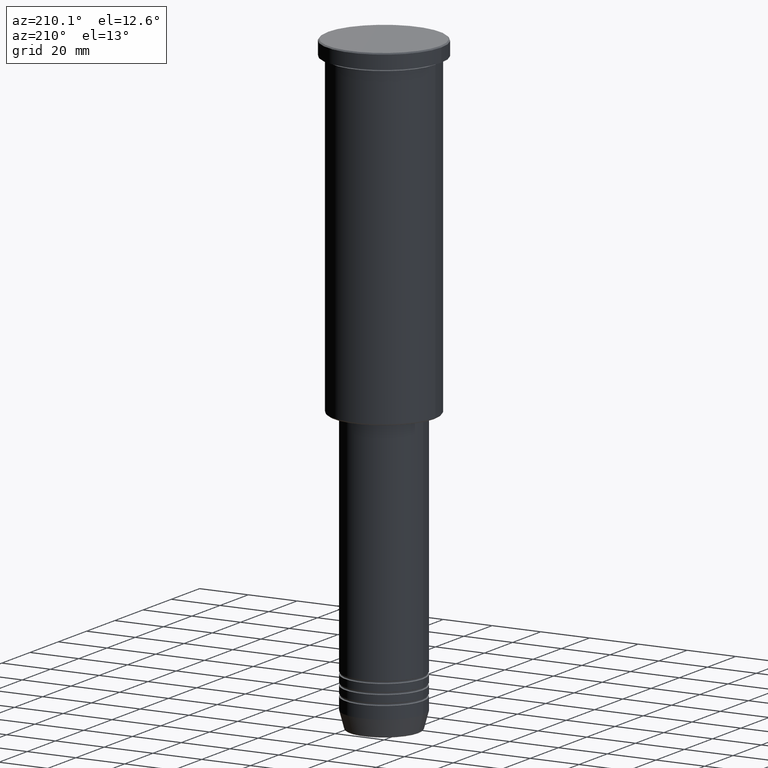
[diagram: clean part render]
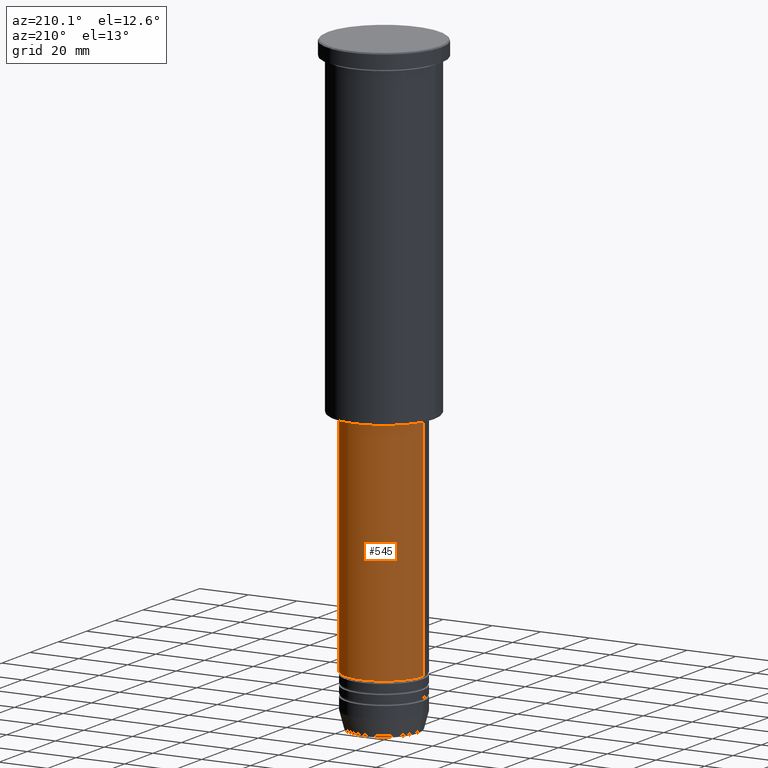
[diagram: same view with one face highlighted and labeled with its STEP entity id]
A machine part, auxiliary view. The second image highlights one B-rep face of the part: STEP entity #545.
In plain terms, the highlighted cylindrical surface (partial cylindrical patch) has radius 16 mm, axis along (-0, -0, 1).
Its self-contained STEP definition (entity closure, byte-faithful):
#15 = AXIS2_PLACEMENT_3D ( 'NONE', #1142, #138, #877 ) ;
#54 = AXIS2_PLACEMENT_3D ( 'NONE', #184, #395, #563 ) ;
#58 = CARTESIAN_POINT ( 'NONE',  ( 16.00000000000000355, 0.000000000000000000, -137.0000000000000000 ) ) ;
#80 = CARTESIAN_POINT ( 'NONE',  ( 16.00000000000000000, 0.000000000000000000, 0.000000000000000000 ) ) ;
#95 = CARTESIAN_POINT ( 'NONE',  ( 0.000000000000000000, 0.000000000000000000, -229.9999999999998863 ) ) ;
#118 = FACE_OUTER_BOUND ( 'NONE', #405, .T. ) ;
#138 = DIRECTION ( 'NONE',  ( -0.000000000000000000, -0.000000000000000000, 1.000000000000000000 ) ) ;
#184 = CARTESIAN_POINT ( 'NONE',  ( 0.000000000000000000, 0.000000000000000000, 0.000000000000000000 ) ) ;
#204 = DIRECTION ( 'NONE',  ( -0.000000000000000000, -0.000000000000000000, 1.000000000000000000 ) ) ;
#209 = CYLINDRICAL_SURFACE ( 'NONE', #54, 16.00000000000000000 ) ;
#255 = CIRCLE ( 'NONE', #930, 16.00000000000000000 ) ;
#270 = VECTOR ( 'NONE', #1166, 1000.000000000000000 ) ;
#292 = VERTEX_POINT ( 'NONE', #864 ) ;
#301 = ORIENTED_EDGE ( 'NONE', *, *, #827, .F. ) ;
#311 = EDGE_CURVE ( 'NONE', #292, #349, #670, .T. ) ;
#313 = CARTESIAN_POINT ( 'NONE',  ( 16.00000000000000000, 0.000000000000000000, -229.9999999999998863 ) ) ;
#349 = VERTEX_POINT ( 'NONE', #691 ) ;
#395 = DIRECTION ( 'NONE',  ( -0.000000000000000000, -0.000000000000000000, 1.000000000000000000 ) ) ;
#405 = EDGE_LOOP ( 'NONE', ( #609, #850, #649, #301 ) ) ;
#445 = DIRECTION ( 'NONE',  ( -0.000000000000000000, -0.000000000000000000, 1.000000000000000000 ) ) ;
#449 = EDGE_CURVE ( 'NONE', #456, #349, #533, .T. ) ;
#456 = VERTEX_POINT ( 'NONE', #58 ) ;
#458 = DIRECTION ( 'NONE',  ( 1.000000000000000000, 0.000000000000000000, 0.000000000000000000 ) ) ;
#533 = CIRCLE ( 'NONE', #15, 16.00000000000000355 ) ;
#545 = ADVANCED_FACE ( 'NONE', ( #118 ), #209, .T. ) ;
#563 = DIRECTION ( 'NONE',  ( 1.000000000000000000, 0.000000000000000000, 0.000000000000000000 ) ) ;
#609 = ORIENTED_EDGE ( 'NONE', *, *, #1080, .T. ) ;
#649 = ORIENTED_EDGE ( 'NONE', *, *, #449, .F. ) ;
#670 = LINE ( 'NONE', #1017, #1058 ) ;
#687 = VERTEX_POINT ( 'NONE', #313 ) ;
#691 = CARTESIAN_POINT ( 'NONE',  ( -16.00000000000000355, 1.959434878635765526E-15, -137.0000000000000000 ) ) ;
#827 = EDGE_CURVE ( 'NONE', #687, #456, #988, .T. ) ;
#850 = ORIENTED_EDGE ( 'NONE', *, *, #311, .T. ) ;
#864 = CARTESIAN_POINT ( 'NONE',  ( -16.00000000000000000, 1.959434878635765131E-15, -229.9999999999998863 ) ) ;
#877 = DIRECTION ( 'NONE',  ( 1.000000000000000000, 0.000000000000000000, 0.000000000000000000 ) ) ;
#930 = AXIS2_PLACEMENT_3D ( 'NONE', #95, #445, #458 ) ;
#988 = LINE ( 'NONE', #80, #270 ) ;
#1017 = CARTESIAN_POINT ( 'NONE',  ( -16.00000000000000000, 1.959434878635765131E-15, 0.000000000000000000 ) ) ;
#1058 = VECTOR ( 'NONE', #204, 1000.000000000000000 ) ;
#1080 = EDGE_CURVE ( 'NONE', #687, #292, #255, .T. ) ;
#1142 = CARTESIAN_POINT ( 'NONE',  ( 0.000000000000000000, 0.000000000000000000, -137.0000000000000000 ) ) ;
#1166 = DIRECTION ( 'NONE',  ( -0.000000000000000000, -0.000000000000000000, 1.000000000000000000 ) ) ;